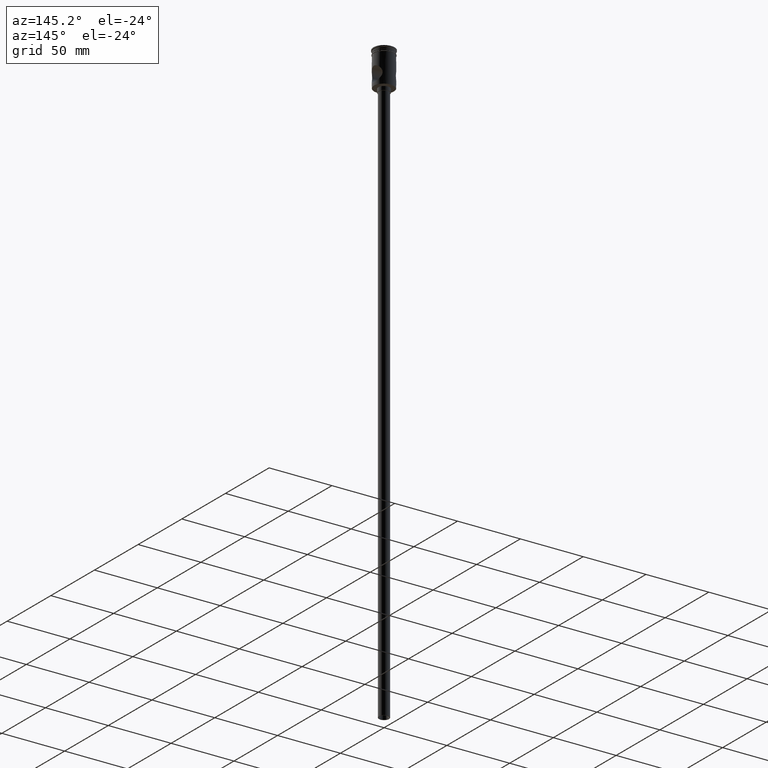
[diagram: clean part render]
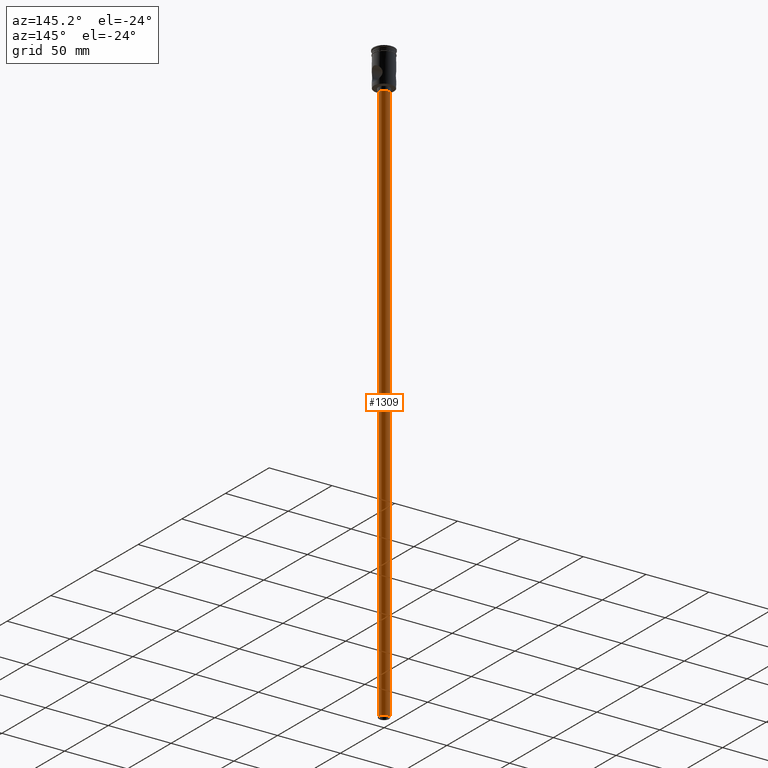
[diagram: same view with one face highlighted and labeled with its STEP entity id]
A machine part, auxiliary view. The second image highlights one B-rep face of the part: STEP entity #1309.
In plain terms, the highlighted cylindrical surface (edge-blend (fillet) strip) has radius 4 mm, axis along (-0, -0, 1).
Its self-contained STEP definition (entity closure, byte-faithful):
#12 = EDGE_CURVE ( 'NONE', #1393, #254, #804, .T. ) ;
#29 = CARTESIAN_POINT ( 'NONE',  ( -4.000000000000000000, 4.898587196589412829E-16, -477.5000000000000568 ) ) ;
#39 = VECTOR ( 'NONE', #585, 1000.000000000000000 ) ;
#142 = VERTEX_POINT ( 'NONE', #29 ) ;
#147 = EDGE_CURVE ( 'NONE', #142, #1393, #1285, .T. ) ;
#220 = DIRECTION ( 'NONE',  ( -0.000000000000000000, -0.000000000000000000, 1.000000000000000000 ) ) ;
#254 = VERTEX_POINT ( 'NONE', #408 ) ;
#267 = CARTESIAN_POINT ( 'NONE',  ( -4.000000000000000000, 4.898587196589412829E-16, -30.50000000000000000 ) ) ;
#269 = CIRCLE ( 'NONE', #567, 4.000000000000000000 ) ;
#302 = DIRECTION ( 'NONE',  ( 0.000000000000000000, 0.000000000000000000, -1.000000000000000000 ) ) ;
#403 = ORIENTED_EDGE ( 'NONE', *, *, #1300, .F. ) ;
#408 = CARTESIAN_POINT ( 'NONE',  ( 4.000000000000000000, 0.000000000000000000, -30.50000000000000000 ) ) ;
#449 = DIRECTION ( 'NONE',  ( 1.000000000000000000, 0.000000000000000000, 0.000000000000000000 ) ) ;
#536 = DIRECTION ( 'NONE',  ( -1.000000000000000000, 0.000000000000000000, 0.000000000000000000 ) ) ;
#553 = ORIENTED_EDGE ( 'NONE', *, *, #559, .F. ) ;
#559 = EDGE_CURVE ( 'NONE', #142, #1077, #269, .T. ) ;
#567 = AXIS2_PLACEMENT_3D ( 'NONE', #1255, #302, #991 ) ;
#585 = DIRECTION ( 'NONE',  ( -0.000000000000000000, -0.000000000000000000, 1.000000000000000000 ) ) ;
#745 = CARTESIAN_POINT ( 'NONE',  ( -4.000000000000000000, 4.898587196589412829E-16, -477.5000000000000568 ) ) ;
#803 = CYLINDRICAL_SURFACE ( 'NONE', #1214, 4.000000000000000000 ) ;
#804 = CIRCLE ( 'NONE', #1063, 4.000000000000000000 ) ;
#820 = EDGE_LOOP ( 'NONE', ( #553, #928, #865, #403 ) ) ;
#865 = ORIENTED_EDGE ( 'NONE', *, *, #12, .T. ) ;
#902 = CARTESIAN_POINT ( 'NONE',  ( 0.000000000000000000, 0.000000000000000000, -477.5000000000000568 ) ) ;
#928 = ORIENTED_EDGE ( 'NONE', *, *, #147, .T. ) ;
#991 = DIRECTION ( 'NONE',  ( -1.000000000000000000, 0.000000000000000000, 0.000000000000000000 ) ) ;
#1063 = AXIS2_PLACEMENT_3D ( 'NONE', #1470, #1109, #536 ) ;
#1077 = VERTEX_POINT ( 'NONE', #1187 ) ;
#1091 = VECTOR ( 'NONE', #1211, 1000.000000000000000 ) ;
#1109 = DIRECTION ( 'NONE',  ( 0.000000000000000000, 0.000000000000000000, -1.000000000000000000 ) ) ;
#1187 = CARTESIAN_POINT ( 'NONE',  ( 4.000000000000000000, 0.000000000000000000, -477.5000000000000568 ) ) ;
#1211 = DIRECTION ( 'NONE',  ( -0.000000000000000000, -0.000000000000000000, 1.000000000000000000 ) ) ;
#1214 = AXIS2_PLACEMENT_3D ( 'NONE', #902, #220, #449 ) ;
#1255 = CARTESIAN_POINT ( 'NONE',  ( 0.000000000000000000, 0.000000000000000000, -477.5000000000000568 ) ) ;
#1269 = FACE_OUTER_BOUND ( 'NONE', #820, .T. ) ;
#1275 = CARTESIAN_POINT ( 'NONE',  ( 4.000000000000000000, 0.000000000000000000, -477.5000000000000568 ) ) ;
#1285 = LINE ( 'NONE', #745, #1091 ) ;
#1300 = EDGE_CURVE ( 'NONE', #1077, #254, #1480, .T. ) ;
#1309 = ADVANCED_FACE ( 'NONE', ( #1269 ), #803, .T. ) ;
#1393 = VERTEX_POINT ( 'NONE', #267 ) ;
#1470 = CARTESIAN_POINT ( 'NONE',  ( 0.000000000000000000, 0.000000000000000000, -30.50000000000000000 ) ) ;
#1480 = LINE ( 'NONE', #1275, #39 ) ;